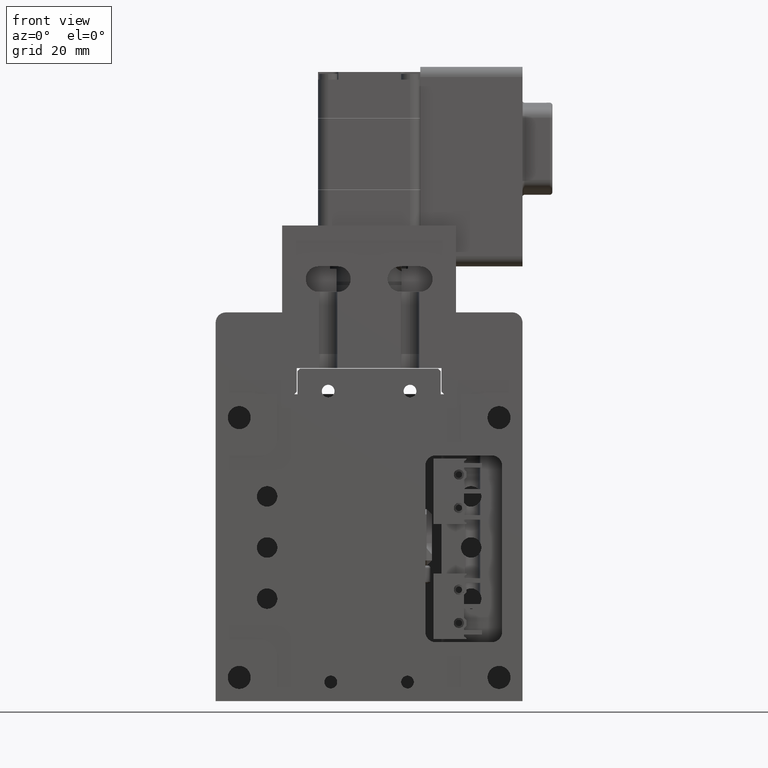
[diagram: clean part render]
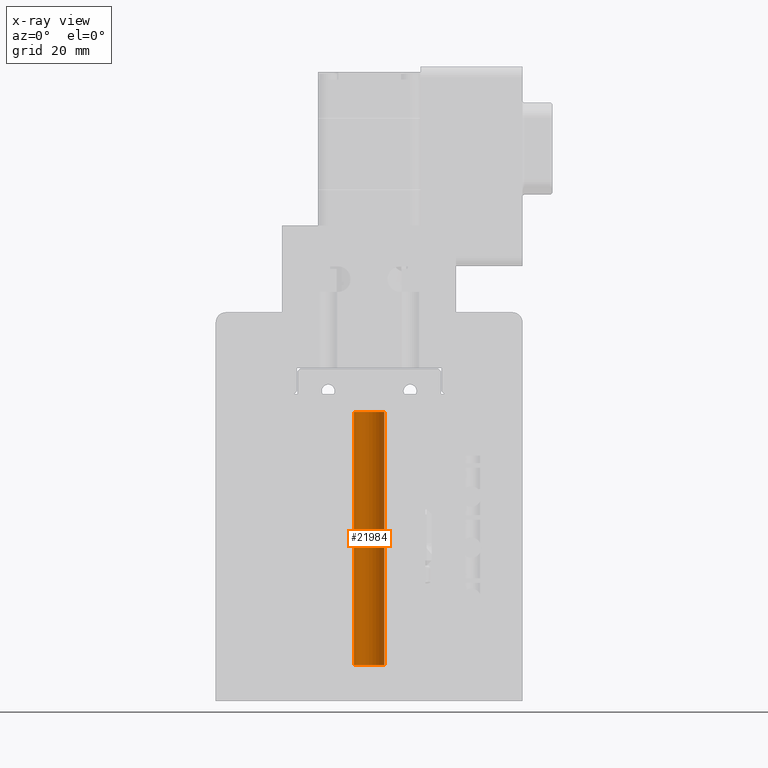
[diagram: x-ray — body ghosted, one internal face saturated and labeled with its STEP entity id]
A machine part, front view, then the same camera in x-ray: the body is ghosted and one INTERNAL B-rep face — a face not visible from any outside direction — is saturated and labeled: STEP entity #21984.
In plain terms, the highlighted cylindrical surface (edge-blend (fillet) strip) has radius 3 mm, axis along (0, -0, 1).
Its self-contained STEP definition (entity closure, byte-faithful):
#134 = ORIENTED_EDGE ( 'NONE', *, *, #8962, .F. ) ;
#692 = ORIENTED_EDGE ( 'NONE', *, *, #1081, .T. ) ;
#742 = VERTEX_POINT ( 'NONE', #19174 ) ;
#952 = AXIS2_PLACEMENT_3D ( 'NONE', #15252, #4668, #17006 ) ;
#1081 = EDGE_CURVE ( 'NONE', #21268, #6805, #17378, .T. ) ;
#1844 = FACE_OUTER_BOUND ( 'NONE', #11114, .T. ) ;
#3050 = CARTESIAN_POINT ( 'NONE',  ( -5.572151032806830900, -2.106093308630998100, 155.9657248538030100 ) ) ;
#4048 = ORIENTED_EDGE ( 'NONE', *, *, #14557, .T. ) ;
#4668 = DIRECTION ( 'NONE',  ( 1.423581074164817700E-029, -3.379979697468932300E-030, 1.000000000000000000 ) ) ;
#6805 = VERTEX_POINT ( 'NONE', #11134 ) ;
#6897 = AXIS2_PLACEMENT_3D ( 'NONE', #18692, #20482, #11703 ) ;
#8962 = EDGE_CURVE ( 'NONE', #742, #11228, #14741, .T. ) ;
#10045 = CIRCLE ( 'NONE', #6897, 3.000000000000006200 ) ;
#10568 = VECTOR ( 'NONE', #19163, 1000.000000000000000 ) ;
#11114 = EDGE_LOOP ( 'NONE', ( #4048, #692, #16878, #134 ) ) ;
#11134 = CARTESIAN_POINT ( 'NONE',  ( -5.572151032806815800, -2.106093308630999900, 89.01421163981659400 ) ) ;
#11228 = VERTEX_POINT ( 'NONE', #20307 ) ;
#11690 = AXIS2_PLACEMENT_3D ( 'NONE', #20243, #20397, #20475 ) ;
#11703 = DIRECTION ( 'NONE',  ( 0.9934771446662956600, -0.1140314124515889700, 0.0000000000000000000 ) ) ;
#11766 = DIRECTION ( 'NONE',  ( 1.423581074164817700E-029, -3.379979697468932300E-030, 1.000000000000000000 ) ) ;
#14557 = EDGE_CURVE ( 'NONE', #742, #21268, #15618, .T. ) ;
#14741 = LINE ( 'NONE', #22735, #10568 ) ;
#15252 = CARTESIAN_POINT ( 'NONE',  ( -2.591719598807934200, -2.448187545985766700, 39.51421163981660800 ) ) ;
#15339 = CYLINDRICAL_SURFACE ( 'NONE', #11690, 3.000000000000009800 ) ;
#15618 = CIRCLE ( 'NONE', #952, 3.000000000000012900 ) ;
#16878 = ORIENTED_EDGE ( 'NONE', *, *, #17088, .F. ) ;
#17006 = DIRECTION ( 'NONE',  ( 0.9934771446662955500, -0.1140314124515890000, 0.0000000000000000000 ) ) ;
#17088 = EDGE_CURVE ( 'NONE', #11228, #6805, #10045, .T. ) ;
#17097 = VECTOR ( 'NONE', #11766, 1000.000000000000000 ) ;
#17378 = LINE ( 'NONE', #3050, #17097 ) ;
#18462 = CARTESIAN_POINT ( 'NONE',  ( -5.572151032806820200, -2.106093308630999400, 39.51421163981660800 ) ) ;
#18692 = CARTESIAN_POINT ( 'NONE',  ( -2.591719598807934200, -2.448187545985766700, 89.01421163981659400 ) ) ;
#19163 = DIRECTION ( 'NONE',  ( 1.423581074164817700E-029, -3.379979697468932300E-030, 1.000000000000000000 ) ) ;
#19174 = CARTESIAN_POINT ( 'NONE',  ( 0.3887118351909649200, -2.790281783340535300, 39.51421163981660800 ) ) ;
#20243 = CARTESIAN_POINT ( 'NONE',  ( -2.591719598807934200, -2.448187545985766700, 155.9657248538030100 ) ) ;
#20307 = CARTESIAN_POINT ( 'NONE',  ( 0.3887118351909588700, -2.790281783340534400, 89.01421163981659400 ) ) ;
#20397 = DIRECTION ( 'NONE',  ( 1.423581074164817700E-029, -3.379979697468932300E-030, 1.000000000000000000 ) ) ;
#20475 = DIRECTION ( 'NONE',  ( 0.9934771446662955500, -0.1140314124515889700, 0.0000000000000000000 ) ) ;
#20482 = DIRECTION ( 'NONE',  ( 1.423581074164817700E-029, -3.379979697468932300E-030, 1.000000000000000000 ) ) ;
#21268 = VERTEX_POINT ( 'NONE', #18462 ) ;
#21984 = ADVANCED_FACE ( 'NONE', ( #1844 ), #15339, .T. ) ;
#22735 = CARTESIAN_POINT ( 'NONE',  ( 0.3887118351909618600, -2.790281783340534900, 155.9657248538030100 ) ) ;